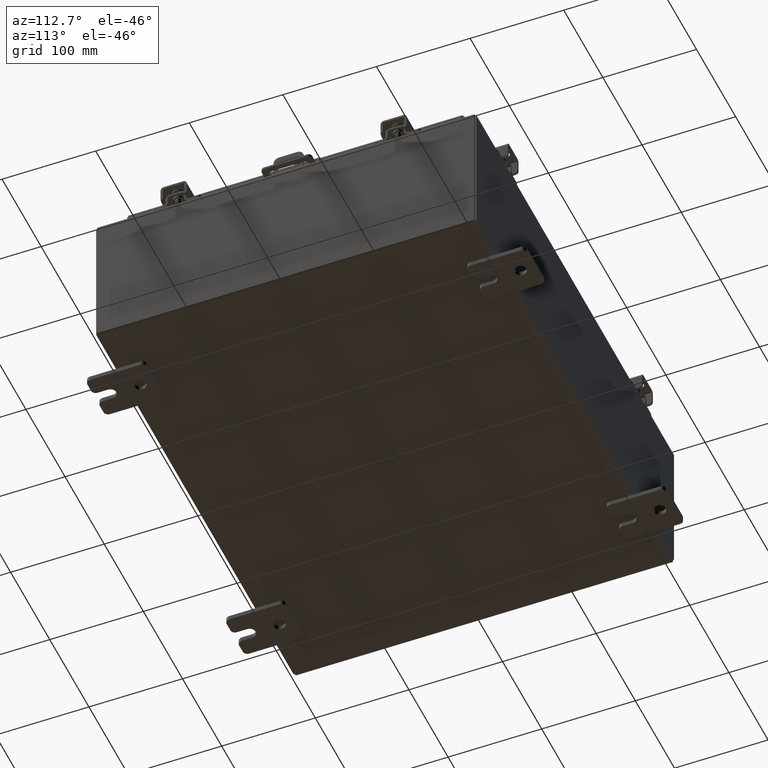
[diagram: clean part render]
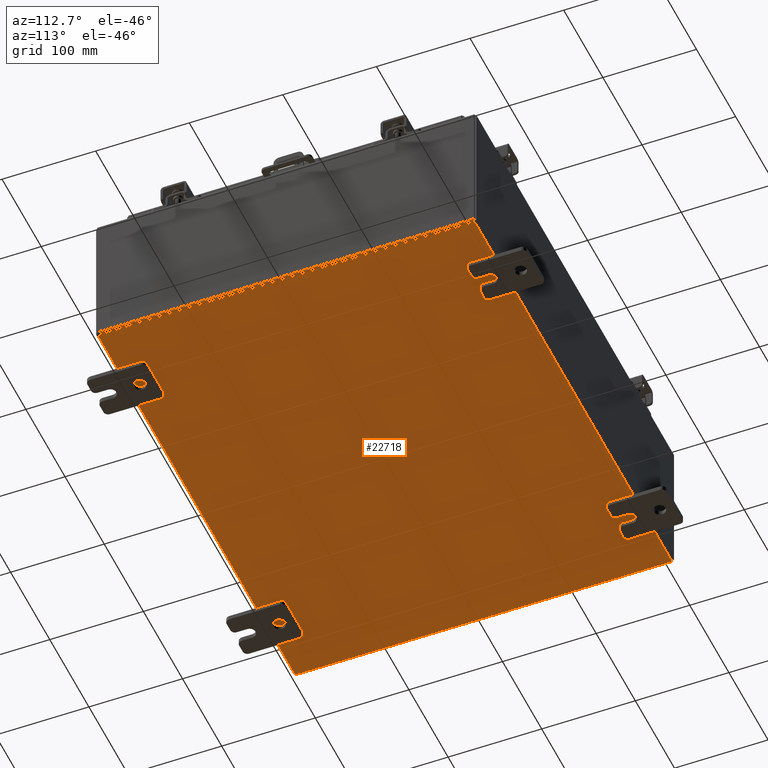
[diagram: same view with one face highlighted and labeled with its STEP entity id]
A machine part, auxiliary view. The second image highlights one B-rep face of the part: STEP entity #22718.
In plain terms, the highlighted planar face has unit normal (0, 0, -1).
Its self-contained STEP definition (entity closure, byte-faithful):
#181 = LINE ( 'NONE', #14707, #19403 ) ;
#1132 = VECTOR ( 'NONE', #10108, 39.37007874015748100 ) ;
#1380 = ORIENTED_EDGE ( 'NONE', *, *, #10787, .F. ) ;
#6173 = VERTEX_POINT ( 'NONE', #13592 ) ;
#6200 = FACE_OUTER_BOUND ( 'NONE', #19527, .T. ) ;
#6710 = VERTEX_POINT ( 'NONE', #16495 ) ;
#7064 = CARTESIAN_POINT ( 'NONE',  ( 0.0000000000000000000, 0.0000000000000000000, -0.07470000000000000300 ) ) ;
#7955 = PLANE ( 'NONE',  #11187 ) ;
#8445 = EDGE_CURVE ( 'NONE', #10203, #6173, #18176, .T. ) ;
#8651 = VECTOR ( 'NONE', #23348, 39.37007874015748100 ) ;
#10108 = DIRECTION ( 'NONE',  ( -0.0000000000000000000, 1.000000000000000000, -0.0000000000000000000 ) ) ;
#10203 = VERTEX_POINT ( 'NONE', #21684 ) ;
#10480 = EDGE_CURVE ( 'NONE', #21002, #6173, #14737, .T. ) ;
#10747 = CARTESIAN_POINT ( 'NONE',  ( -9.912300000000000100, -7.925300000000000000, -0.07469999999999994700 ) ) ;
#10780 = DIRECTION ( 'NONE',  ( -1.000000000000000000, 0.0000000000000000000, -0.0000000000000000000 ) ) ;
#10787 = EDGE_CURVE ( 'NONE', #21002, #6710, #181, .T. ) ;
#10832 = ORIENTED_EDGE ( 'NONE', *, *, #10480, .T. ) ;
#11187 = AXIS2_PLACEMENT_3D ( 'NONE', #7064, #23759, #10780 ) ;
#11903 = LINE ( 'NONE', #10747, #1132 ) ;
#12146 = ORIENTED_EDGE ( 'NONE', *, *, #15344, .T. ) ;
#13592 = CARTESIAN_POINT ( 'NONE',  ( 9.912300000000000100, -7.925300000000000000, -0.07470000000000000300 ) ) ;
#14058 = DIRECTION ( 'NONE',  ( -1.000000000000000000, -0.0000000000000000000, -0.0000000000000000000 ) ) ;
#14707 = CARTESIAN_POINT ( 'NONE',  ( -10.00000000000000000, 7.925300000000000000, -0.07470000000000000300 ) ) ;
#14737 = LINE ( 'NONE', #25618, #8651 ) ;
#15344 = EDGE_CURVE ( 'NONE', #10203, #6710, #11903, .T. ) ;
#16261 = CARTESIAN_POINT ( 'NONE',  ( 9.912300000000000100, 7.925300000000000000, -0.07469999999999994700 ) ) ;
#16495 = CARTESIAN_POINT ( 'NONE',  ( -9.912300000000000100, 7.925300000000000000, -0.07470000000000000300 ) ) ;
#18176 = LINE ( 'NONE', #24904, #24849 ) ;
#19403 = VECTOR ( 'NONE', #14058, 39.37007874015748100 ) ;
#19527 = EDGE_LOOP ( 'NONE', ( #25396, #12146, #1380, #10832 ) ) ;
#21002 = VERTEX_POINT ( 'NONE', #16261 ) ;
#21684 = CARTESIAN_POINT ( 'NONE',  ( -9.912300000000000100, -7.925300000000000000, -0.07469999999999994700 ) ) ;
#22718 = ADVANCED_FACE ( 'NONE', ( #6200 ), #7955, .T. ) ;
#23348 = DIRECTION ( 'NONE',  ( -0.0000000000000000000, -1.000000000000000000, -0.0000000000000000000 ) ) ;
#23759 = DIRECTION ( 'NONE',  ( 0.0000000000000000000, 0.0000000000000000000, -1.000000000000000000 ) ) ;
#24849 = VECTOR ( 'NONE', #25081, 39.37007874015748100 ) ;
#24904 = CARTESIAN_POINT ( 'NONE',  ( -10.00000000000000000, -7.925300000000000000, -0.07470000000000000300 ) ) ;
#25081 = DIRECTION ( 'NONE',  ( 1.000000000000000000, 0.0000000000000000000, 0.0000000000000000000 ) ) ;
#25396 = ORIENTED_EDGE ( 'NONE', *, *, #8445, .F. ) ;
#25618 = CARTESIAN_POINT ( 'NONE',  ( 9.912300000000000100, 7.925300000000000000, -0.07469999999999994700 ) ) ;